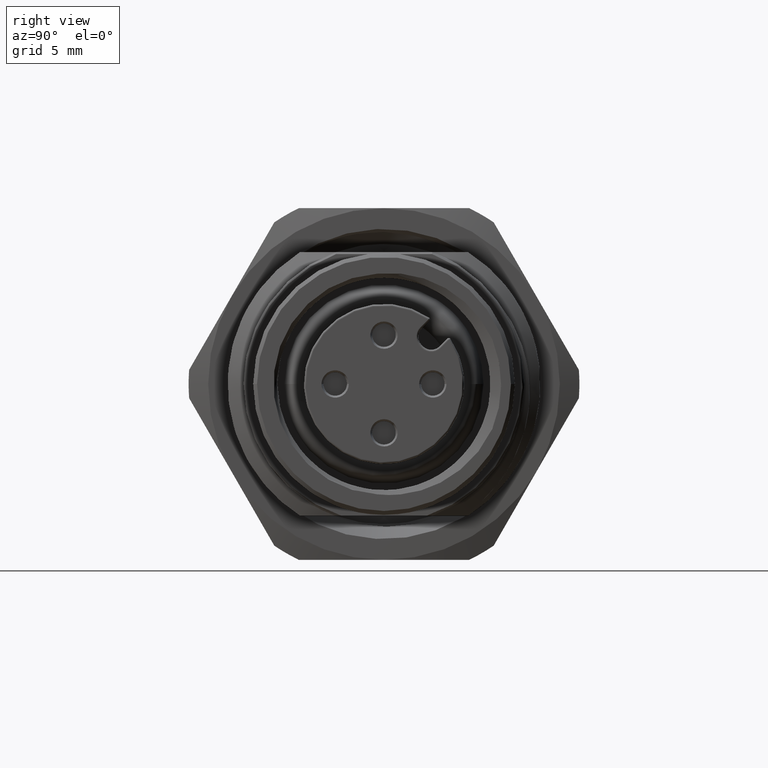
[diagram: clean part render]
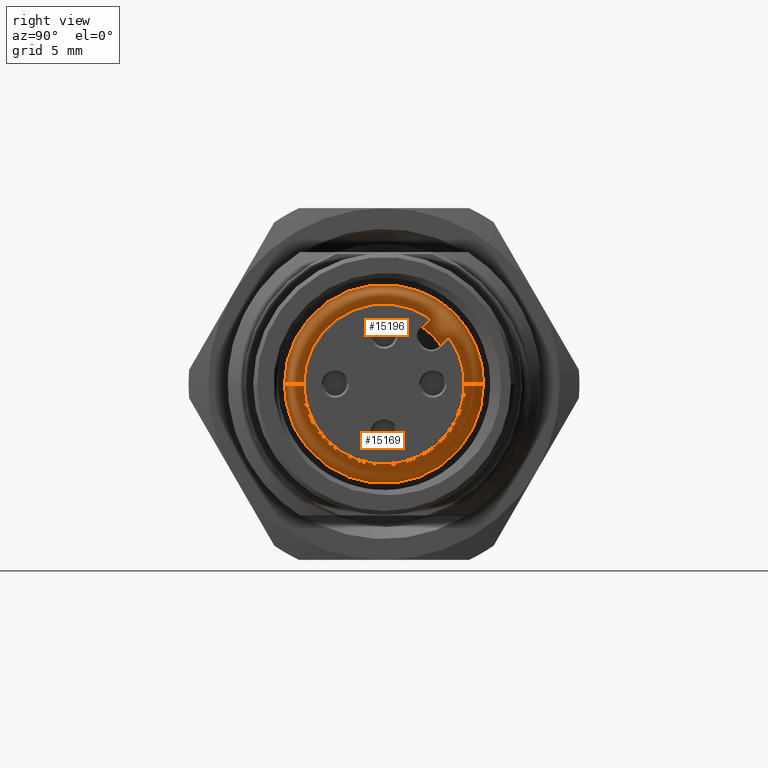
[diagram: same view with one multi-face feature highlighted, each face labeled with its STEP entity id]
A machine part, right view. The highlighted faces form ONE feature: a constant-radius fillet chain: 2 tangent blend faces with common blend radius 0.8 mm. The faces share edges in the B-rep.
Their STEP definitions:
[1] entity #15196 (Torus):
#3900=CARTESIAN_POINT('',(9.125403330758E0,0.E0,0.E0));
#3901=DIRECTION('',(1.E0,0.E0,0.E0));
#3902=DIRECTION('',(0.E0,7.071067811866E-1,7.071067811865E-1));
#3903=AXIS2_PLACEMENT_3D('',#3900,#3901,#3902);
#3905=CARTESIAN_POINT('',(9.9E0,4.299999951664E0,6.447292897827E-4));
#3906=DIRECTION('',(0.E0,-1.499370441356E-4,9.999999887594E-1));
#3907=DIRECTION('',(9.682458365524E-1,-2.499999971879E-1,-3.748426103360E-5));
#3908=AXIS2_PLACEMENT_3D('',#3905,#3906,#3907);
#3910=CARTESIAN_POINT('',(9.9E0,-4.299999951664E0,-6.447292897756E-4));
#3911=DIRECTION('',(0.E0,-1.499370441339E-4,9.999999887594E-1));
#3912=DIRECTION('',(-9.682458365524E-1,2.499999971879E-1,3.748426103318E-5));
#3913=AXIS2_PLACEMENT_3D('',#3910,#3911,#3912);
#3920=CARTESIAN_POINT('',(1.067459666924E1,0.E0,0.E0));
#3921=DIRECTION('',(1.E0,0.E0,0.E0));
#3922=DIRECTION('',(0.E0,9.999999887594E-1,1.499370441355E-4));
#3923=AXIS2_PLACEMENT_3D('',#3920,#3921,#3922);
#3930=CARTESIAN_POINT('',(1.067459666924E1,0.E0,0.E0));
#3931=DIRECTION('',(1.E0,0.E0,0.E0));
#3932=DIRECTION('',(0.E0,5.619834401179E-1,8.271484830629E-1));
#3933=AXIS2_PLACEMENT_3D('',#3930,#3931,#3932);
#3940=CARTESIAN_POINT('',(9.125403330758E0,0.E0,0.E0));
#3941=DIRECTION('',(1.E0,0.E0,0.E0));
#3942=DIRECTION('',(0.E0,9.999999887594E-1,1.499370441363E-4));
#3943=AXIS2_PLACEMENT_3D('',#3940,#3941,#3942);
#4017=CARTESIAN_POINT('',(1.063428150800E1,2.318644438590E0,3.237883254133E0));
#4018=CARTESIAN_POINT('',(1.061672151613E1,2.289541376227E0,3.208780191770E0));
#4019=CARTESIAN_POINT('',(1.057683108349E1,2.236604769621E0,3.155843585164E0));
#4020=CARTESIAN_POINT('',(1.050909652717E1,2.171741625139E0,3.090980440682E0));
#4021=CARTESIAN_POINT('',(1.043619082231E1,2.118457094952E0,3.037695910495E0));
#4022=CARTESIAN_POINT('',(1.035854972995E1,2.074364997106E0,2.993603812649E0));
#4023=CARTESIAN_POINT('',(1.027618695209E1,2.038221283372E0,2.957460098915E0));
#4024=CARTESIAN_POINT('',(1.018815729553E1,2.009322545834E0,2.928561361377E0));
#4025=CARTESIAN_POINT('',(1.009551497094E1,1.988210841829E0,2.907449657372E0));
#4026=CARTESIAN_POINT('',(1.003218594044E1,1.979634050266E0,2.898872865809E0));
#4027=CARTESIAN_POINT('',(1.E1,1.976716120993E0,2.895954936536E0));
#4033=CARTESIAN_POINT('',(1.E1,0.E0,0.E0));
#4034=DIRECTION('',(1.E0,0.E0,0.E0));
#4035=DIRECTION('',(0.E0,8.259350054955E-1,5.637653471944E-1));
#4036=AXIS2_PLACEMENT_3D('',#4033,#4034,#4035);
#4052=CARTESIAN_POINT('',(1.E1,2.895954936536E0,1.976716120993E0));
#4053=CARTESIAN_POINT('',(1.005471697867E1,2.900915496072E0,1.981676680529E0));
#4054=CARTESIAN_POINT('',(1.016055809108E1,2.918539739908E0,1.999300924365E0));
#4055=CARTESIAN_POINT('',(1.031232414051E1,2.968949340196E0,2.049710524653E0));
#4056=CARTESIAN_POINT('',(1.044582570419E1,3.040300589530E0,2.121061773987E0));
#4057=CARTESIAN_POINT('',(1.055855934282E1,3.132563447210E0,2.213324631668E0));
#4058=CARTESIAN_POINT('',(1.061216060064E1,3.201221155914E0,2.281982340371E0));
#4059=CARTESIAN_POINT('',(1.063428150800E1,3.237883254133E0,2.318644438589E0));
#4073=CARTESIAN_POINT('',(1.063428150800E1,3.237883254133E0,2.318644438589E0));
#4074=CARTESIAN_POINT('',(1.063944981813E1,3.246448955822E0,2.327210140279E0));
#4075=CARTESIAN_POINT('',(1.064919722323E1,3.266398250222E0,2.340919690342E0));
#4076=CARTESIAN_POINT('',(1.066074102161E1,3.300938080607E0,2.349662585171E0));
#4077=CARTESIAN_POINT('',(1.066878849560E1,3.335839379129E0,2.346299230842E0));
#4078=CARTESIAN_POINT('',(1.067360197822E1,3.368385144485E0,2.330706084756E0));
#4079=CARTESIAN_POINT('',(1.067459666924E1,3.384790147341E0,2.313726475406E0));
#4080=CARTESIAN_POINT('',(1.067459666924E1,3.391308780558E0,2.304132104483E0));
#4158=CARTESIAN_POINT('',(1.067459666924E1,2.304132104484E0,3.391308780558E0));
#4159=CARTESIAN_POINT('',(1.067459666924E1,2.313614960930E0,3.384865912806E0));
#4160=CARTESIAN_POINT('',(1.067362485556E1,2.330480500681E0,3.368647258810E0));
#4161=CARTESIAN_POINT('',(1.066887976851E1,2.346124048904E0,3.336373691928E0));
#4162=CARTESIAN_POINT('',(1.066087999532E1,2.349810715086E0,3.301304606397E0));
#4163=CARTESIAN_POINT('',(1.064886390093E1,2.340586241627E0,3.265512800917E0));
#4164=CARTESIAN_POINT('',(1.063927565724E1,2.326921494624E0,3.246160310167E0));
#4165=CARTESIAN_POINT('',(1.063428150800E1,2.318644438590E0,3.237883254133E0));
#10601=CARTESIAN_POINT('',(9.125403330758E0,-4.099999953914E0,
-6.147418809475E-4));
#10603=VERTEX_POINT('',#10601);
#10605=CARTESIAN_POINT('',(1.067459666924E1,2.304132104484E0,3.391308780558E0));
#10606=CARTESIAN_POINT('',(1.067459666924E1,-4.099999953914E0,
-6.147418809521E-4));
#10607=VERTEX_POINT('',#10605);
#10608=VERTEX_POINT('',#10606);
#10609=CARTESIAN_POINT('',(9.125403330758E0,2.899137802865E0,2.899137802865E0));
#10610=VERTEX_POINT('',#10609);
#10611=VERTEX_POINT('',#4017);
#10612=VERTEX_POINT('',#4027);
#10613=CARTESIAN_POINT('',(1.E1,2.895954936536E0,1.976716120993E0));
#10614=VERTEX_POINT('',#10613);
#10615=CARTESIAN_POINT('',(9.125403330758E0,4.099999953914E0,
6.147418809586E-4));
#10616=VERTEX_POINT('',#10615);
#10617=CARTESIAN_POINT('',(1.067459666924E1,4.099999953914E0,
6.147418809554E-4));
#10618=CARTESIAN_POINT('',(1.067459666924E1,3.391308780558E0,2.304132104484E0));
#10619=VERTEX_POINT('',#10617);
#10620=VERTEX_POINT('',#10618);
#10621=VERTEX_POINT('',#4073);
#15170=CARTESIAN_POINT('',(9.9E0,0.E0,0.E0));
#15171=DIRECTION('',(1.E0,0.E0,0.E0));
#15172=DIRECTION('',(0.E0,-9.999999887594E-1,-1.499370441348E-4));
#15173=AXIS2_PLACEMENT_3D('',#15170,#15171,#15172);
#15174=TOROIDAL_SURFACE('',#15173,4.299999999999E0,7.999999999999E-1);
#15175=ORIENTED_EDGE('',*,*,#15163,.F.);
#15176=ORIENTED_EDGE('',*,*,#15148,.F.);
#15178=ORIENTED_EDGE('',*,*,#15177,.F.);
#15179=ORIENTED_EDGE('',*,*,#15158,.F.);
#15181=ORIENTED_EDGE('',*,*,#15180,.T.);
#15183=ORIENTED_EDGE('',*,*,#15182,.F.);
#15185=ORIENTED_EDGE('',*,*,#15184,.F.);
#15187=ORIENTED_EDGE('',*,*,#15186,.T.);
#15189=ORIENTED_EDGE('',*,*,#15188,.F.);
#15191=ORIENTED_EDGE('',*,*,#15190,.F.);
#15193=ORIENTED_EDGE('',*,*,#15192,.T.);
#15194=EDGE_LOOP('',(#15175,#15176,#15178,#15179,#15181,#15183,#15185,#15187,
#15189,#15191,#15193));
#15195=FACE_OUTER_BOUND('',#15194,.F.);
#15196=ADVANCED_FACE('',(#15195),#15174,.T.);
#3904=CIRCLE('',#3903,4.1E0);
#3909=CIRCLE('',#3908,7.999999999999E-1);
#3914=CIRCLE('',#3913,7.999999999999E-1);
#3924=CIRCLE('',#3923,4.1E0);
#3934=CIRCLE('',#3933,4.1E0);
#3944=CIRCLE('',#3943,4.1E0);
#4028=B_SPLINE_CURVE_WITH_KNOTS('',3,(#4017,#4018,#4019,#4020,#4021,#4022,#4023,
#4024,#4025,#4026,#4027),.UNSPECIFIED.,.F.,.F.,(4,1,1,1,1,1,1,1,4),(0.E0,
1.25E-1,2.5E-1,3.75E-1,5.E-1,6.25E-1,7.5E-1,8.75E-1,1.E0),.UNSPECIFIED.);
#4037=CIRCLE('',#4036,3.506274606679E0);
#4060=B_SPLINE_CURVE_WITH_KNOTS('',3,(#4052,#4053,#4054,#4055,#4056,#4057,#4058,
#4059),.UNSPECIFIED.,.F.,.F.,(4,1,1,1,1,4),(0.E0,2.E-1,4.E-1,6.E-1,8.E-1,1.E0),
.UNSPECIFIED.);
#4081=B_SPLINE_CURVE_WITH_KNOTS('',3,(#4073,#4074,#4075,#4076,#4077,#4078,#4079,
#4080),.UNSPECIFIED.,.F.,.F.,(4,1,1,1,1,4),(0.E0,2.E-1,4.E-1,6.E-1,8.E-1,1.E0),
.UNSPECIFIED.);
#4166=B_SPLINE_CURVE_WITH_KNOTS('',3,(#4158,#4159,#4160,#4161,#4162,#4163,#4164,
#4165),.UNSPECIFIED.,.F.,.F.,(4,1,1,1,1,4),(0.E0,2.E-1,4.E-1,6.E-1,8.E-1,1.E0),
.UNSPECIFIED.);
#15148=EDGE_CURVE('',#10610,#10603,#3904,.T.);
#15158=EDGE_CURVE('',#10619,#10616,#3909,.T.);
#15163=EDGE_CURVE('',#10603,#10608,#3914,.T.);
#15177=EDGE_CURVE('',#10616,#10610,#3944,.T.);
#15180=EDGE_CURVE('',#10619,#10620,#3924,.T.);
#15182=EDGE_CURVE('',#10621,#10620,#4081,.T.);
#15184=EDGE_CURVE('',#10614,#10621,#4060,.T.);
#15186=EDGE_CURVE('',#10614,#10612,#4037,.T.);
#15188=EDGE_CURVE('',#10611,#10612,#4028,.T.);
#15190=EDGE_CURVE('',#10607,#10611,#4166,.T.);
#15192=EDGE_CURVE('',#10607,#10608,#3934,.T.);
[2] entity #15169 (Torus):
#3895=CARTESIAN_POINT('',(9.125403330758E0,0.E0,0.E0));
#3896=DIRECTION('',(1.E0,0.E0,0.E0));
#3897=DIRECTION('',(0.E0,-9.999999887594E-1,-1.499370441335E-4));
#3898=AXIS2_PLACEMENT_3D('',#3895,#3896,#3897);
#3905=CARTESIAN_POINT('',(9.9E0,4.299999951664E0,6.447292897827E-4));
#3906=DIRECTION('',(0.E0,-1.499370441356E-4,9.999999887594E-1));
#3907=DIRECTION('',(9.682458365524E-1,-2.499999971879E-1,-3.748426103360E-5));
#3908=AXIS2_PLACEMENT_3D('',#3905,#3906,#3907);
#3910=CARTESIAN_POINT('',(9.9E0,-4.299999951664E0,-6.447292897756E-4));
#3911=DIRECTION('',(0.E0,-1.499370441339E-4,9.999999887594E-1));
#3912=DIRECTION('',(-9.682458365524E-1,2.499999971879E-1,3.748426103318E-5));
#3913=AXIS2_PLACEMENT_3D('',#3910,#3911,#3912);
#3925=CARTESIAN_POINT('',(1.067459666924E1,0.E0,0.E0));
#3926=DIRECTION('',(-1.E0,0.E0,0.E0));
#3927=DIRECTION('',(0.E0,9.999999887594E-1,1.499370441355E-4));
#3928=AXIS2_PLACEMENT_3D('',#3925,#3926,#3927);
#3935=CARTESIAN_POINT('',(9.125403330758E0,0.E0,0.E0));
#3936=DIRECTION('',(1.E0,0.E0,0.E0));
#3937=DIRECTION('',(0.E0,-7.071067811865E-1,-7.071067811865E-1));
#3938=AXIS2_PLACEMENT_3D('',#3935,#3936,#3937);
#10601=CARTESIAN_POINT('',(9.125403330758E0,-4.099999953914E0,
-6.147418809475E-4));
#10602=CARTESIAN_POINT('',(9.125403330758E0,-2.899137802865E0,
-2.899137802865E0));
#10603=VERTEX_POINT('',#10601);
#10604=VERTEX_POINT('',#10602);
#10606=CARTESIAN_POINT('',(1.067459666924E1,-4.099999953914E0,
-6.147418809521E-4));
#10608=VERTEX_POINT('',#10606);
#10615=CARTESIAN_POINT('',(9.125403330758E0,4.099999953914E0,
6.147418809586E-4));
#10616=VERTEX_POINT('',#10615);
#10617=CARTESIAN_POINT('',(1.067459666924E1,4.099999953914E0,
6.147418809554E-4));
#10619=VERTEX_POINT('',#10617);
#15153=CARTESIAN_POINT('',(9.9E0,0.E0,0.E0));
#15154=DIRECTION('',(1.E0,0.E0,0.E0));
#15155=DIRECTION('',(0.E0,-9.999999887594E-1,-1.499370441348E-4));
#15156=AXIS2_PLACEMENT_3D('',#15153,#15154,#15155);
#15157=TOROIDAL_SURFACE('',#15156,4.299999999999E0,7.999999999999E-1);
#15159=ORIENTED_EDGE('',*,*,#15158,.T.);
#15161=ORIENTED_EDGE('',*,*,#15160,.F.);
#15162=ORIENTED_EDGE('',*,*,#15141,.F.);
#15164=ORIENTED_EDGE('',*,*,#15163,.T.);
#15166=ORIENTED_EDGE('',*,*,#15165,.F.);
#15167=EDGE_LOOP('',(#15159,#15161,#15162,#15164,#15166));
#15168=FACE_OUTER_BOUND('',#15167,.F.);
#15169=ADVANCED_FACE('',(#15168),#15157,.T.);
#3899=CIRCLE('',#3898,4.1E0);
#3909=CIRCLE('',#3908,7.999999999999E-1);
#3914=CIRCLE('',#3913,7.999999999999E-1);
#3929=CIRCLE('',#3928,4.1E0);
#3939=CIRCLE('',#3938,4.1E0);
#15141=EDGE_CURVE('',#10603,#10604,#3899,.T.);
#15158=EDGE_CURVE('',#10619,#10616,#3909,.T.);
#15160=EDGE_CURVE('',#10604,#10616,#3939,.T.);
#15163=EDGE_CURVE('',#10603,#10608,#3914,.T.);
#15165=EDGE_CURVE('',#10619,#10608,#3929,.T.);